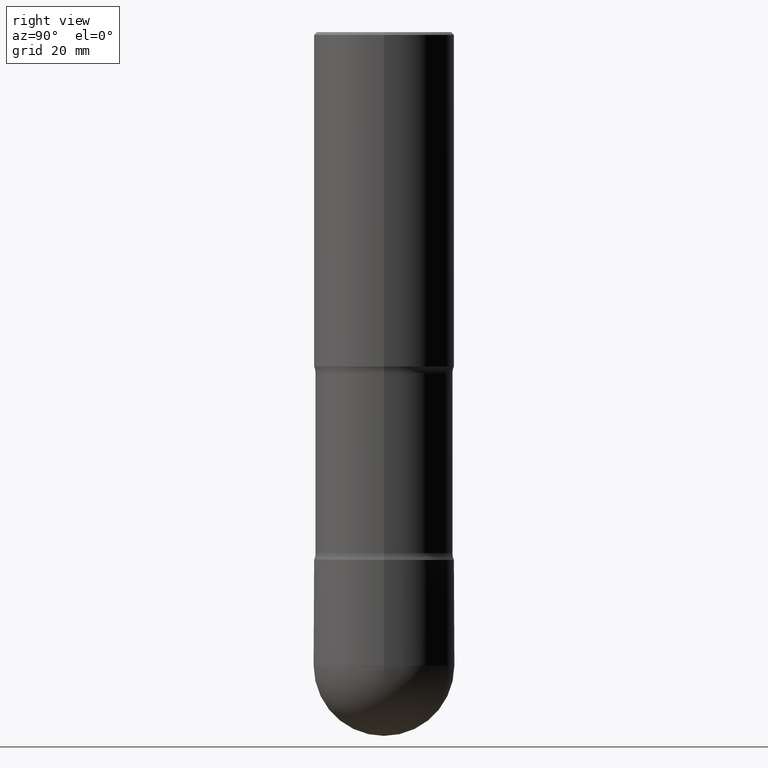
[diagram: clean part render]
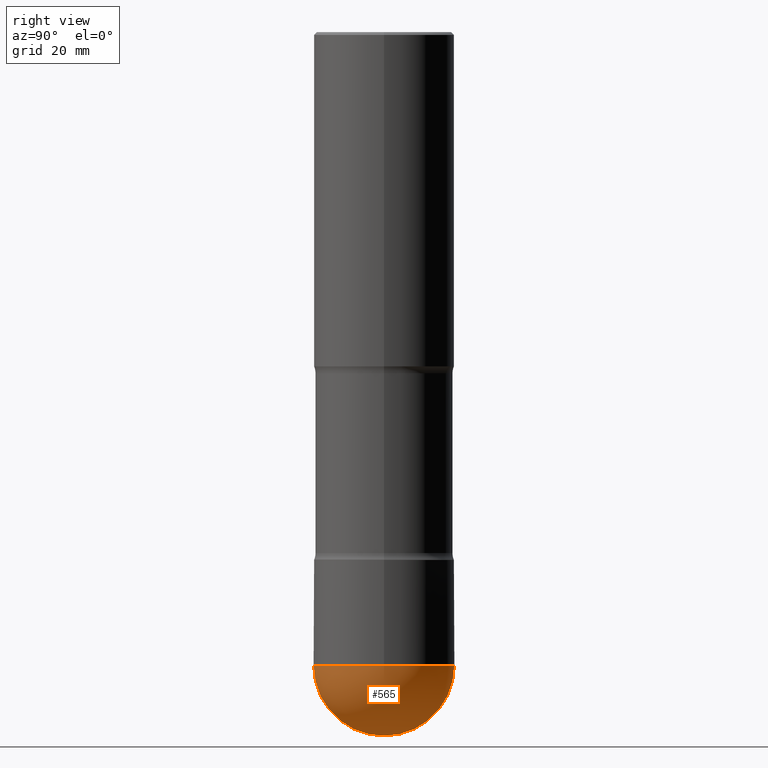
[diagram: same view with one face highlighted and labeled with its STEP entity id]
A machine part, right view. The second image highlights one B-rep face of the part: STEP entity #565.
In plain terms, the highlighted spherical surface has radius 12.7 mm.
Its self-contained STEP definition (entity closure, byte-faithful):
#13 = EDGE_CURVE ( 'NONE', #148, #179, #529, .T. ) ;
#17 = ORIENTED_EDGE ( 'NONE', *, *, #13, .F. ) ;
#24 = DIRECTION ( 'NONE',  ( 1.000000000000000000, -6.982962677686264344E-15, 0.000000000000000000 ) ) ;
#27 = EDGE_CURVE ( 'NONE', #495, #434, #452, .T. ) ;
#31 = EDGE_CURVE ( 'NONE', #179, #495, #284, .T. ) ;
#46 = ORIENTED_EDGE ( 'NONE', *, *, #31, .F. ) ;
#48 = CIRCLE ( 'NONE', #65, 0.4999999999999998335 ) ;
#53 = CARTESIAN_POINT ( 'NONE',  ( 1.100460962783311244E-28, -1.571166602479415374E-14, -4.499999999999999112 ) ) ;
#55 = DIRECTION ( 'NONE',  ( -1.000000000000000000, 6.982962677686265922E-15, -4.883557194083112340E-29 ) ) ;
#60 = EDGE_CURVE ( 'NONE', #148, #434, #48, .T. ) ;
#65 = AXIS2_PLACEMENT_3D ( 'NONE', #92, #263, #471 ) ;
#81 = CARTESIAN_POINT ( 'NONE',  ( 1.087633468445620528E-28, -1.589536304466625962E-14, -4.500000000000000000 ) ) ;
#86 = DIRECTION ( 'NONE',  ( 1.000000000000000000, -6.982962677686265922E-15, 4.883557194083112901E-29 ) ) ;
#92 = CARTESIAN_POINT ( 'NONE',  ( 1.087633468445620528E-28, -1.589536304466625962E-14, -4.500000000000000000 ) ) ;
#122 = SPHERICAL_SURFACE ( 'NONE', #377, 0.4999999999999998335 ) ;
#148 = VERTEX_POINT ( 'NONE', #415 ) ;
#152 = DIRECTION ( 'NONE',  ( 1.000000000000000000, -6.982962677686264344E-15, 0.000000000000000000 ) ) ;
#179 = VERTEX_POINT ( 'NONE', #359 ) ;
#217 = AXIS2_PLACEMENT_3D ( 'NONE', #53, #233, #152 ) ;
#233 = DIRECTION ( 'NONE',  ( -2.445468806185136597E-29, 3.491481338843145583E-15, 1.000000000000000000 ) ) ;
#238 = DIRECTION ( 'NONE',  ( -6.982962677686265922E-15, -1.000000000000000000, 0.000000000000000000 ) ) ;
#263 = DIRECTION ( 'NONE',  ( 1.000000000000000000, -7.105427357601001070E-15, 4.926315508542082329E-29 ) ) ;
#280 = CARTESIAN_POINT ( 'NONE',  ( 1.087633468445620528E-28, -1.589536304466625962E-14, -4.500000000000000000 ) ) ;
#284 = CIRCLE ( 'NONE', #217, 0.4999999999999993339 ) ;
#293 = CARTESIAN_POINT ( 'NONE',  ( 0.4999999999999993339, -1.789384186157110736E-14, -4.499999999999999112 ) ) ;
#317 = AXIS2_PLACEMENT_3D ( 'NONE', #280, #55, #238 ) ;
#338 = ORIENTED_EDGE ( 'NONE', *, *, #27, .F. ) ;
#343 = AXIS2_PLACEMENT_3D ( 'NONE', #447, #544, #24 ) ;
#359 = CARTESIAN_POINT ( 'NONE',  ( -3.491481338843020943E-15, -0.5000000000000154321, -4.499999999999998224 ) ) ;
#377 = AXIS2_PLACEMENT_3D ( 'NONE', #81, #86, #562 ) ;
#415 = CARTESIAN_POINT ( 'NONE',  ( 1.207768993031928718E-28, -1.767171988406651324E-14, -5.000000000000000000 ) ) ;
#434 = VERTEX_POINT ( 'NONE', #513 ) ;
#447 = CARTESIAN_POINT ( 'NONE',  ( 1.100460962783311244E-28, -1.571166602479415374E-14, -4.499999999999999112 ) ) ;
#452 = CIRCLE ( 'NONE', #343, 0.4999999999999993339 ) ;
#471 = DIRECTION ( 'NONE',  ( 7.105427357601001070E-15, 1.000000000000000000, 0.000000000000000000 ) ) ;
#487 = EDGE_LOOP ( 'NONE', ( #17, #491, #338, #46 ) ) ;
#491 = ORIENTED_EDGE ( 'NONE', *, *, #60, .T. ) ;
#495 = VERTEX_POINT ( 'NONE', #293 ) ;
#513 = CARTESIAN_POINT ( 'NONE',  ( 3.552713678800606637E-15, 0.4999999999999837352, -4.500000000000000888 ) ) ;
#527 = FACE_OUTER_BOUND ( 'NONE', #487, .T. ) ;
#529 = CIRCLE ( 'NONE', #317, 0.4999999999999998335 ) ;
#544 = DIRECTION ( 'NONE',  ( -2.445468806185136597E-29, 3.491481338843145583E-15, 1.000000000000000000 ) ) ;
#562 = DIRECTION ( 'NONE',  ( -6.982962677686265922E-15, -1.000000000000000000, 3.278217592397116651E-15 ) ) ;
#565 = ADVANCED_FACE ( 'NONE', ( #527 ), #122, .T. ) ;